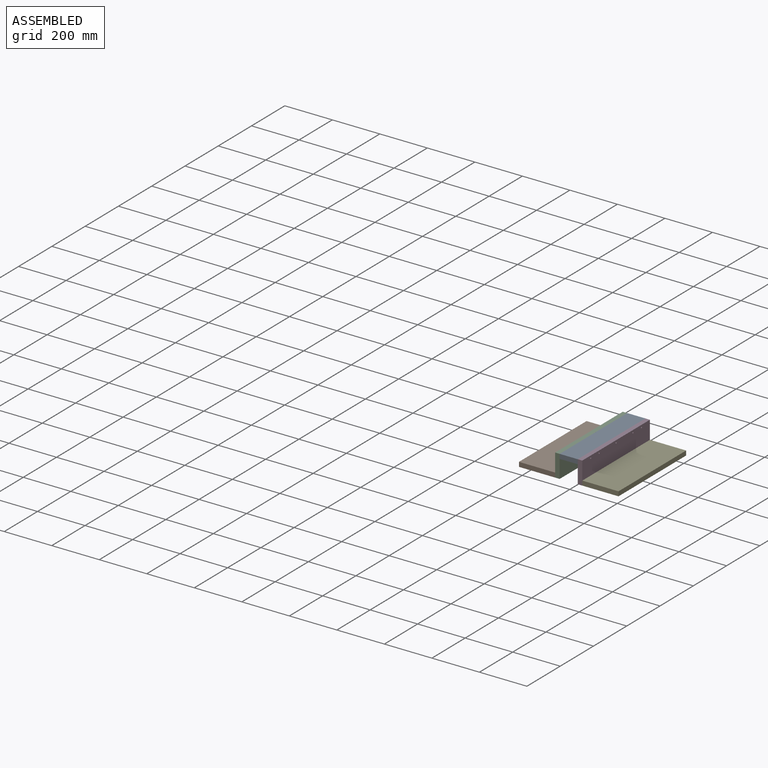
[diagram: assembled view]
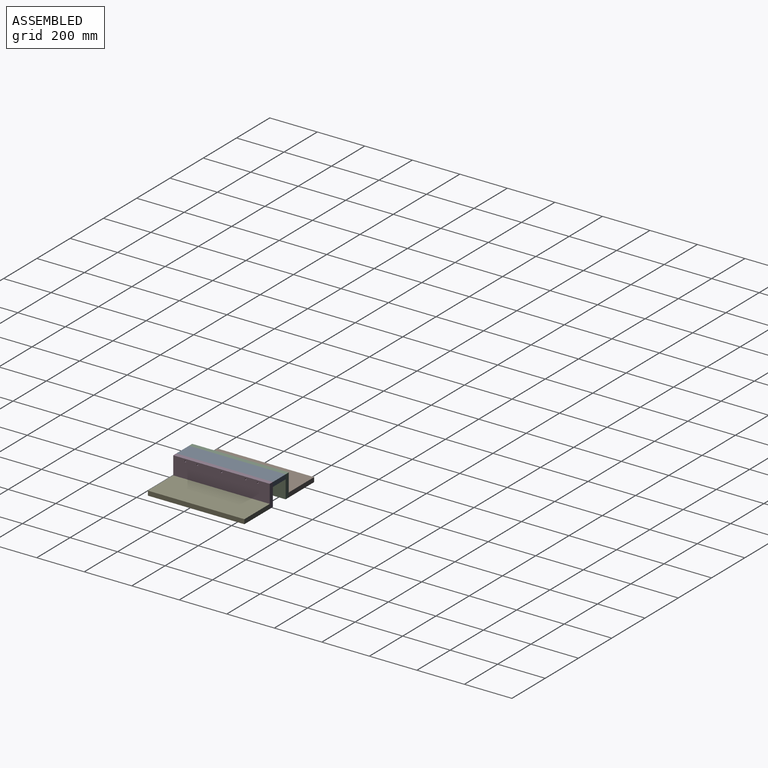
[diagram: assembled view, second angle]
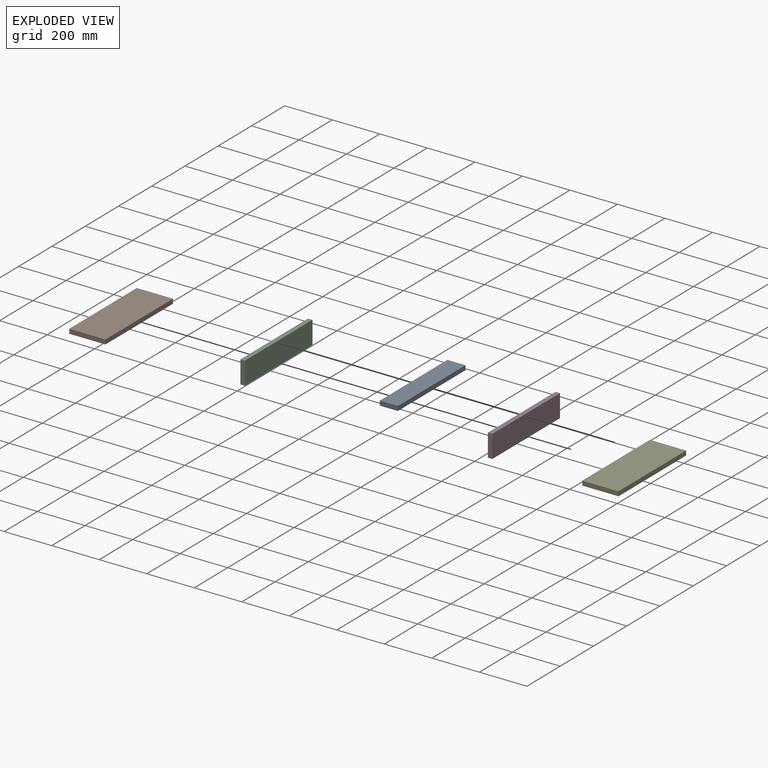
[diagram: exploded view]
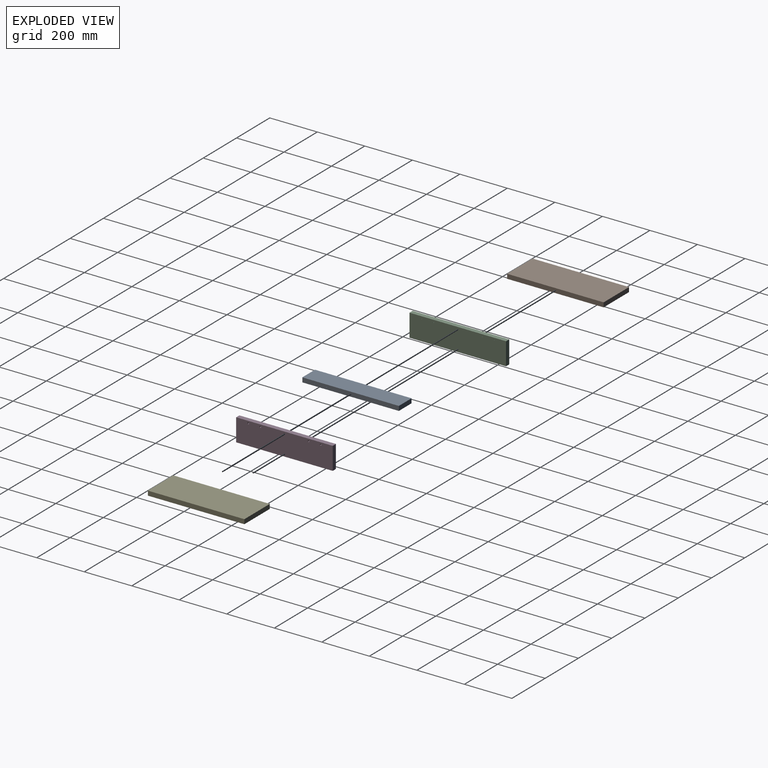
[diagram: exploded view, second angle]
ASSEMBLY  parts=5 mates=4
PART A: 11 faces, bbox 76.2x406.4x19.1 mm
  f0: plane 406.4x76.2mm, normal (0,0,1), area 30967.7mm2, adj f1,f3,f4,f5
  f1: plane 406.4x19.05mm, normal (-1,0,0), area 7702.3mm2, adj f0,f2,f4,f5,f6,f7,f8,f9
  f2: plane 406.4x76.2mm, normal (0,0,-1), area 30967.7mm2, adj f1,f3,f4,f5
  f3: plane 406.4x19.05mm, normal (1,0,0), area 7702.3mm2, adj f0,f2,f4,f5,f6,f7,f8,f9
  f4: plane 76.2x19.05mm, normal (0,-1,0), area 1451.6mm2, adj f0,f1,f2,f3
  f5: plane 76.2x19.05mm, normal (0,1,0), area 1451.6mm2, adj f0,f1,f2,f3
  f6: cylinder r=1.59mm len=76.2mm, axis (-1,0,0), area 760.1mm2, adj f1,f3
  f7: cylinder r=1.59mm len=76.2mm, axis (-1,0,0), area 760.1mm2, adj f1,f3
  f8: cylinder r=1.59mm len=76.2mm, axis (-1,0,0), area 760.1mm2, adj f1,f3
  f9: cylinder r=1.59mm len=76.2mm, axis (-1,0,0), area 760.1mm2, adj f1,f3
  f10: cylinder r=1.59mm len=76.2mm, axis (-1,0,0), area 760.1mm2, adj f1,f3
PART B: 6 faces, bbox 152.4x406.4x19.1 mm
  f0: plane 406.4x19.05mm, normal (1,0,0), area 7741.9mm2, adj f1,f3,f4,f5
  f1: plane 406.4x152.4mm, normal (0,0,1), area 61935.4mm2, adj f0,f2,f4,f5
  f2: plane 406.4x19.05mm, normal (-1,0,0), area 7741.9mm2, adj f1,f3,f4,f5
  f3: plane 406.4x152.4mm, normal (0,0,-1), area 61935.4mm2, adj f0,f2,f4,f5
  f4: plane 152.4x19.05mm, normal (0,-1,0), area 2903.2mm2, adj f0,f1,f2,f3
  f5: plane 152.4x19.05mm, normal (0,1,0), area 2903.2mm2, adj f0,f1,f2,f3
PART C: 16 faces, bbox 19.1x406.4x95.3 mm
  f0: plane 406.4x19.05mm, normal (0,0,-1), area 7741.9mm2, adj f1,f3,f4,f5
  f1: plane 406.4x95.25mm, normal (1,0,0), area 38670mm2, adj f0,f2,f4,f5,f6,f8,f10,f12
  f2: plane 406.4x19.05mm, normal (0,0,1), area 7741.9mm2, adj f1,f3,f4,f5
  f3: plane 406.4x95.25mm, normal (-1,0,0), area 38551.3mm2, adj f0,f2,f4,f5,f7,f9,f11,f13
  f4: plane 95.25x19.05mm, normal (0,-1,0), area 1814.5mm2, adj f0,f1,f2,f3
  f5: plane 95.25x19.05mm, normal (0,1,0), area 1814.5mm2, adj f0,f1,f2,f3
  f6: cylinder r=1.59mm len=17.46mm, axis (-1,0,0), area 174.2mm2, adj f1,f7
  f7: cone r=1.59mm half-angle=45deg, axis (-1,0,0), area 33.6mm2, adj f3,f6
  f8: cylinder r=1.59mm len=17.46mm, axis (-1,0,0), area 174.2mm2, adj f1,f9
  f9: cone r=1.59mm half-angle=45deg, axis (-1,0,0), area 33.6mm2, adj f3,f8
  f10: cylinder r=1.59mm len=17.46mm, axis (-1,0,0), area 174.2mm2, adj f1,f11
  f11: cone r=1.59mm half-angle=45deg, axis (-1,0,0), area 33.6mm2, adj f3,f10
  f12: cylinder r=1.59mm len=17.46mm, axis (-1,0,0), area 174.2mm2, adj f1,f13
  f13: cone r=1.59mm half-angle=45deg, axis (-1,0,0), area 33.6mm2, adj f3,f12
  f14: cylinder r=1.59mm len=17.46mm, axis (-1,0,0), area 174.2mm2, adj f1,f15
  f15: cone r=1.59mm half-angle=45deg, axis (-1,0,0), area 33.6mm2, adj f3,f14
PART D: same geometry as C
PART E: same geometry as B
PLACE A t=(-227.93,40.82,99.05)mm
PLACE B t=(-227.93,40.82,99.05)mm
PLACE C t=(-227.93,40.82,99.05)mm
PLACE D rot(axis=(0,0,-1),180deg) t=(-228.92,-365.58,99.05)mm
PLACE E rot(axis=(0,0,-1),180deg) t=(-228.92,-365.58,99.05)mm
MATE fastened A.f1 <-> C.f1  axis (-1,0,0) through (-266.52,-365.58,155.45)mm
MATE fastened C.f3 <-> B.f0  axis (-1,0,0) through (-285.57,-365.58,60.2)mm
MATE fastened D.f1 <-> A.f3  axis (-1,0,0) through (-190.32,-365.58,155.45)mm
MATE fastened E.f0 <-> D.f3  axis (-1,0,0) through (-171.27,40.82,60.2)mm
